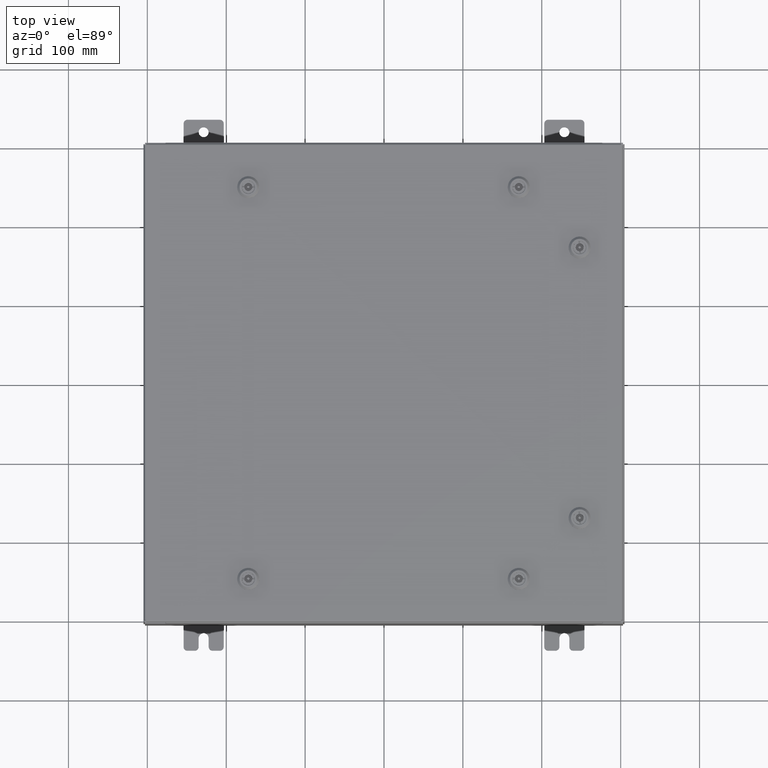
[diagram: clean part render]
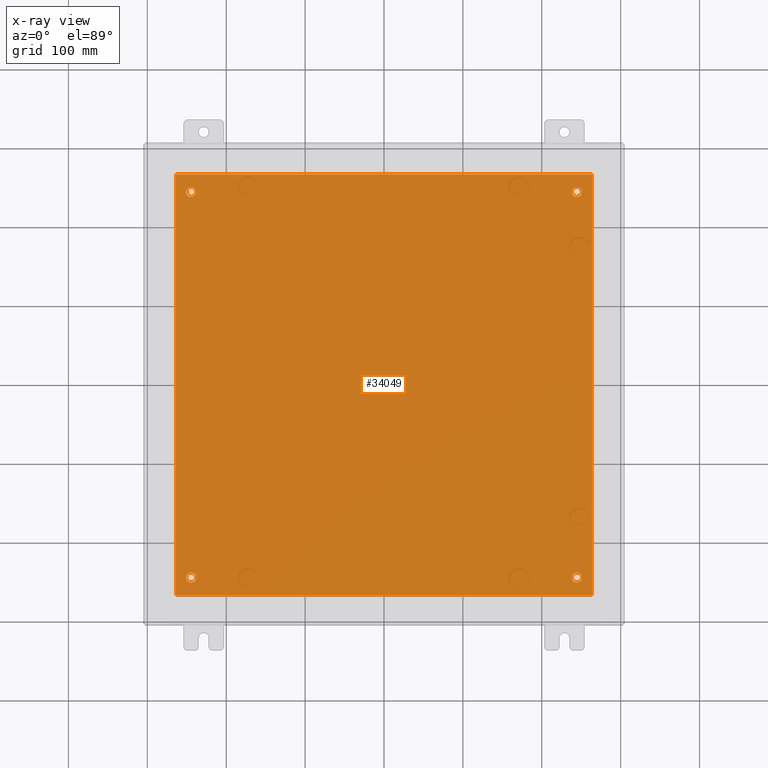
[diagram: x-ray — body ghosted, one internal face saturated and labeled with its STEP entity id]
A machine part, top view, then the same camera in x-ray: the body is ghosted and one INTERNAL B-rep face — a face not visible from any outside direction — is saturated and labeled: STEP entity #34049.
In plain terms, the highlighted planar face has unit normal (0, 0, -1).
Its self-contained STEP definition (entity closure, byte-faithful):
#2370 = DIRECTION ( 'NONE',  ( -1.000000000000000000, 0.0000000000000000000, 0.0000000000000000000 ) ) ;
#2420 = DIRECTION ( 'NONE',  ( -0.0000000000000000000, -0.0000000000000000000, 1.000000000000000000 ) ) ;
#3104 = ORIENTED_EDGE ( 'NONE', *, *, #24343, .T. ) ;
#3569 = CARTESIAN_POINT ( 'NONE',  ( -9.875000000000005300, 9.625000000000001800, -0.1039999999999999800 ) ) ;
#4246 = CIRCLE ( 'NONE', #39423, 0.2499999999999987000 ) ;
#4439 = DIRECTION ( 'NONE',  ( -0.0000000000000000000, -0.0000000000000000000, 1.000000000000000000 ) ) ;
#4459 = EDGE_LOOP ( 'NONE', ( #18223, #12399, #36488, #46787 ) ) ;
#4652 = VERTEX_POINT ( 'NONE', #22686 ) ;
#4889 = CARTESIAN_POINT ( 'NONE',  ( -9.625000000000005300, 9.625000000000001800, -0.1039999999999999800 ) ) ;
#5527 = FACE_OUTER_BOUND ( 'NONE', #4459, .T. ) ;
#5909 = AXIS2_PLACEMENT_3D ( 'NONE', #61090, #31744, #2370 ) ;
#6445 = EDGE_CURVE ( 'NONE', #16542, #19377, #19568, .T. ) ;
#6758 = CARTESIAN_POINT ( 'NONE',  ( 9.875000000000003600, -9.625000000000001800, -0.1039999999999999800 ) ) ;
#6764 = AXIS2_PLACEMENT_3D ( 'NONE', #33815, #4439, #38722 ) ;
#7622 = CARTESIAN_POINT ( 'NONE',  ( 9.875000000000003600, 9.625000000000001800, -0.1039999999999999800 ) ) ;
#9480 = VECTOR ( 'NONE', #54464, 39.37007874015748100 ) ;
#9816 = DIRECTION ( 'NONE',  ( -1.000000000000000000, 0.0000000000000000000, 0.0000000000000000000 ) ) ;
#10078 = VERTEX_POINT ( 'NONE', #28311 ) ;
#10282 = CARTESIAN_POINT ( 'NONE',  ( 9.625000000000005300, 9.625000000000001800, -0.1039999999999999800 ) ) ;
#11595 = DIRECTION ( 'NONE',  ( -0.0000000000000000000, -0.0000000000000000000, 1.000000000000000000 ) ) ;
#11648 = ORIENTED_EDGE ( 'NONE', *, *, #18516, .T. ) ;
#12399 = ORIENTED_EDGE ( 'NONE', *, *, #6445, .F. ) ;
#12916 = CARTESIAN_POINT ( 'NONE',  ( -9.625000000000005300, -9.625000000000001800, -0.1039999999999999800 ) ) ;
#13956 = VECTOR ( 'NONE', #41315, 39.37007874015748100 ) ;
#14479 = EDGE_LOOP ( 'NONE', ( #59746, #35732 ) ) ;
#15246 = DIRECTION ( 'NONE',  ( -1.000000000000000000, 0.0000000000000000000, 0.0000000000000000000 ) ) ;
#15409 = CIRCLE ( 'NONE', #5909, 0.2499999999999987000 ) ;
#15505 = DIRECTION ( 'NONE',  ( -0.0000000000000000000, -0.0000000000000000000, 1.000000000000000000 ) ) ;
#15808 = DIRECTION ( 'NONE',  ( -1.000000000000000000, -0.0000000000000000000, -0.0000000000000000000 ) ) ;
#16466 = CIRCLE ( 'NONE', #36143, 0.2499999999999976100 ) ;
#16542 = VERTEX_POINT ( 'NONE', #46735 ) ;
#17847 = DIRECTION ( 'NONE',  ( -1.000000000000000000, 0.0000000000000000000, 0.0000000000000000000 ) ) ;
#18223 = ORIENTED_EDGE ( 'NONE', *, *, #51798, .F. ) ;
#18516 = EDGE_CURVE ( 'NONE', #38614, #63543, #4246, .T. ) ;
#18614 = FACE_BOUND ( 'NONE', #34462, .T. ) ;
#19190 = CARTESIAN_POINT ( 'NONE',  ( -9.375000000000005300, 9.625000000000001800, -0.1039999999999999800 ) ) ;
#19377 = VERTEX_POINT ( 'NONE', #54040 ) ;
#19568 = LINE ( 'NONE', #49394, #45627 ) ;
#19803 = EDGE_CURVE ( 'NONE', #56113, #61310, #44028, .T. ) ;
#20077 = DIRECTION ( 'NONE',  ( 0.0000000000000000000, -1.000000000000000000, 0.0000000000000000000 ) ) ;
#20191 = LINE ( 'NONE', #59708, #44687 ) ;
#20219 = CARTESIAN_POINT ( 'NONE',  ( -10.50000000000000200, -10.50000000000000000, -0.1039999999999999800 ) ) ;
#21062 = LINE ( 'NONE', #20219, #9480 ) ;
#21717 = FACE_BOUND ( 'NONE', #35388, .T. ) ;
#22686 = CARTESIAN_POINT ( 'NONE',  ( 9.375000000000007100, -9.625000000000001800, -0.1039999999999999800 ) ) ;
#23832 = DIRECTION ( 'NONE',  ( -1.000000000000000000, 0.0000000000000000000, -0.0000000000000000000 ) ) ;
#24095 = CARTESIAN_POINT ( 'NONE',  ( 10.38300000000000100, 10.50000000000000200, -0.1039999999999999800 ) ) ;
#24343 = EDGE_CURVE ( 'NONE', #29221, #24802, #41472, .T. ) ;
#24738 = AXIS2_PLACEMENT_3D ( 'NONE', #31805, #2420, #36727 ) ;
#24802 = VERTEX_POINT ( 'NONE', #7622 ) ;
#25314 = CIRCLE ( 'NONE', #61592, 0.2499999999999976100 ) ;
#25843 = ORIENTED_EDGE ( 'NONE', *, *, #44352, .T. ) ;
#27668 = VERTEX_POINT ( 'NONE', #6758 ) ;
#28311 = CARTESIAN_POINT ( 'NONE',  ( 10.38299999999999900, -10.50000000000000000, -0.1039999999999999800 ) ) ;
#28531 = CARTESIAN_POINT ( 'NONE',  ( 0.0000000000000000000, 0.0000000000000000000, -0.1039999999999999800 ) ) ;
#28551 = EDGE_CURVE ( 'NONE', #61310, #56113, #53462, .T. ) ;
#29221 = VERTEX_POINT ( 'NONE', #31658 ) ;
#31008 = ORIENTED_EDGE ( 'NONE', *, *, #54660, .T. ) ;
#31024 = AXIS2_PLACEMENT_3D ( 'NONE', #10282, #44580, #15246 ) ;
#31639 = FACE_BOUND ( 'NONE', #14479, .T. ) ;
#31658 = CARTESIAN_POINT ( 'NONE',  ( 9.375000000000007100, 9.625000000000001800, -0.1039999999999999800 ) ) ;
#31744 = DIRECTION ( 'NONE',  ( -0.0000000000000000000, -0.0000000000000000000, 1.000000000000000000 ) ) ;
#31769 = EDGE_CURVE ( 'NONE', #27668, #4652, #16466, .T. ) ;
#31805 = CARTESIAN_POINT ( 'NONE',  ( -9.625000000000005300, -9.625000000000001800, -0.1039999999999999800 ) ) ;
#33434 = PLANE ( 'NONE',  #43160 ) ;
#33815 = CARTESIAN_POINT ( 'NONE',  ( 9.625000000000005300, 9.625000000000001800, -0.1039999999999999800 ) ) ;
#34049 = ADVANCED_FACE ( 'NONE', ( #31639, #21717, #57715, #18614, #5527 ), #33434, .T. ) ;
#34138 = CARTESIAN_POINT ( 'NONE',  ( -9.375000000000005300, -9.625000000000001800, -0.1039999999999999800 ) ) ;
#34462 = EDGE_LOOP ( 'NONE', ( #38811, #11648 ) ) ;
#34888 = VERTEX_POINT ( 'NONE', #24095 ) ;
#35388 = EDGE_LOOP ( 'NONE', ( #50288, #25843 ) ) ;
#35732 = ORIENTED_EDGE ( 'NONE', *, *, #19803, .T. ) ;
#36143 = AXIS2_PLACEMENT_3D ( 'NONE', #40929, #11595, #45907 ) ;
#36488 = ORIENTED_EDGE ( 'NONE', *, *, #61174, .F. ) ;
#36727 = DIRECTION ( 'NONE',  ( -1.000000000000000000, 0.0000000000000000000, 0.0000000000000000000 ) ) ;
#36939 = AXIS2_PLACEMENT_3D ( 'NONE', #12916, #47205, #17847 ) ;
#37306 = CIRCLE ( 'NONE', #31024, 0.2499999999999976100 ) ;
#37621 = EDGE_CURVE ( 'NONE', #63543, #38614, #15409, .T. ) ;
#38614 = VERTEX_POINT ( 'NONE', #3569 ) ;
#38722 = DIRECTION ( 'NONE',  ( -1.000000000000000000, 0.0000000000000000000, 0.0000000000000000000 ) ) ;
#38811 = ORIENTED_EDGE ( 'NONE', *, *, #37621, .T. ) ;
#39163 = DIRECTION ( 'NONE',  ( -0.0000000000000000000, -0.0000000000000000000, 1.000000000000000000 ) ) ;
#39423 = AXIS2_PLACEMENT_3D ( 'NONE', #4889, #39163, #9816 ) ;
#40137 = CARTESIAN_POINT ( 'NONE',  ( -9.875000000000005300, -9.625000000000001800, -0.1039999999999999800 ) ) ;
#40929 = CARTESIAN_POINT ( 'NONE',  ( 9.625000000000005300, -9.625000000000001800, -0.1039999999999999800 ) ) ;
#41315 = DIRECTION ( 'NONE',  ( 0.0000000000000000000, 1.000000000000000000, 0.0000000000000000000 ) ) ;
#41472 = CIRCLE ( 'NONE', #6764, 0.2499999999999976100 ) ;
#43160 = AXIS2_PLACEMENT_3D ( 'NONE', #28531, #53132, #23832 ) ;
#44028 = CIRCLE ( 'NONE', #24738, 0.2499999999999987000 ) ;
#44352 = EDGE_CURVE ( 'NONE', #4652, #27668, #25314, .T. ) ;
#44580 = DIRECTION ( 'NONE',  ( -0.0000000000000000000, -0.0000000000000000000, 1.000000000000000000 ) ) ;
#44687 = VECTOR ( 'NONE', #15808, 39.37007874015748100 ) ;
#44866 = CARTESIAN_POINT ( 'NONE',  ( 9.625000000000005300, -9.625000000000001800, -0.1039999999999999800 ) ) ;
#45627 = VECTOR ( 'NONE', #20077, 39.37007874015748100 ) ;
#45907 = DIRECTION ( 'NONE',  ( -1.000000000000000000, 0.0000000000000000000, 0.0000000000000000000 ) ) ;
#46735 = CARTESIAN_POINT ( 'NONE',  ( -10.38299999999999900, 10.50000000000000400, -0.1040000000000031300 ) ) ;
#46787 = ORIENTED_EDGE ( 'NONE', *, *, #62610, .F. ) ;
#47205 = DIRECTION ( 'NONE',  ( -0.0000000000000000000, -0.0000000000000000000, 1.000000000000000000 ) ) ;
#49394 = CARTESIAN_POINT ( 'NONE',  ( -10.38299999999999900, 10.50000000000000400, -0.1040000000000031300 ) ) ;
#49794 = DIRECTION ( 'NONE',  ( -1.000000000000000000, 0.0000000000000000000, 0.0000000000000000000 ) ) ;
#50288 = ORIENTED_EDGE ( 'NONE', *, *, #31769, .T. ) ;
#51798 = EDGE_CURVE ( 'NONE', #19377, #10078, #21062, .T. ) ;
#53132 = DIRECTION ( 'NONE',  ( 0.0000000000000000000, 0.0000000000000000000, -1.000000000000000000 ) ) ;
#53462 = CIRCLE ( 'NONE', #36939, 0.2499999999999987000 ) ;
#54040 = CARTESIAN_POINT ( 'NONE',  ( -10.38299999999999900, -10.50000000000000000, -0.1040000000000031300 ) ) ;
#54464 = DIRECTION ( 'NONE',  ( 1.000000000000000000, 0.0000000000000000000, 0.0000000000000000000 ) ) ;
#54582 = LINE ( 'NONE', #60593, #13956 ) ;
#54660 = EDGE_CURVE ( 'NONE', #24802, #29221, #37306, .T. ) ;
#56113 = VERTEX_POINT ( 'NONE', #40137 ) ;
#57715 = FACE_BOUND ( 'NONE', #58450, .T. ) ;
#58450 = EDGE_LOOP ( 'NONE', ( #31008, #3104 ) ) ;
#59708 = CARTESIAN_POINT ( 'NONE',  ( -10.50000000000000000, 10.50000000000000200, -0.1039999999999999800 ) ) ;
#59746 = ORIENTED_EDGE ( 'NONE', *, *, #28551, .T. ) ;
#60593 = CARTESIAN_POINT ( 'NONE',  ( 10.38300000000000100, -10.50000000000000200, -0.1040000000000009100 ) ) ;
#61090 = CARTESIAN_POINT ( 'NONE',  ( -9.625000000000005300, 9.625000000000001800, -0.1039999999999999800 ) ) ;
#61174 = EDGE_CURVE ( 'NONE', #34888, #16542, #20191, .T. ) ;
#61310 = VERTEX_POINT ( 'NONE', #34138 ) ;
#61592 = AXIS2_PLACEMENT_3D ( 'NONE', #44866, #15505, #49794 ) ;
#62610 = EDGE_CURVE ( 'NONE', #10078, #34888, #54582, .T. ) ;
#63543 = VERTEX_POINT ( 'NONE', #19190 ) ;